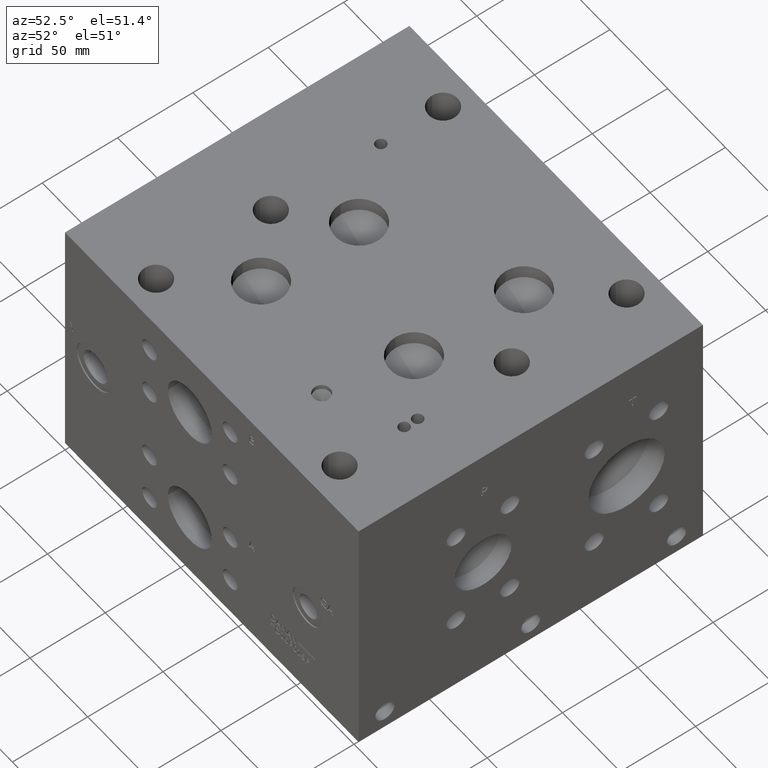
[diagram: clean part render]
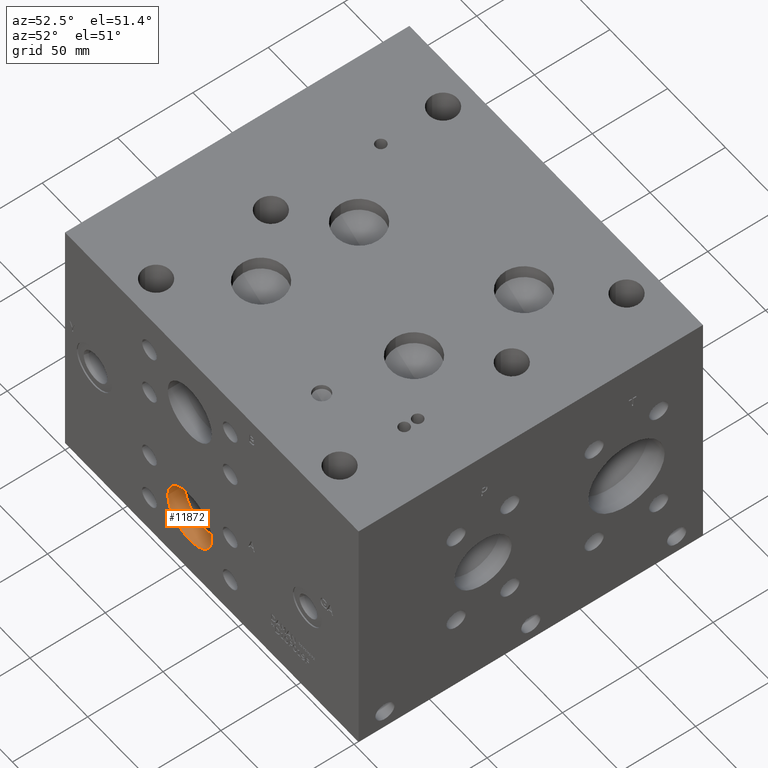
[diagram: same view with one face highlighted and labeled with its STEP entity id]
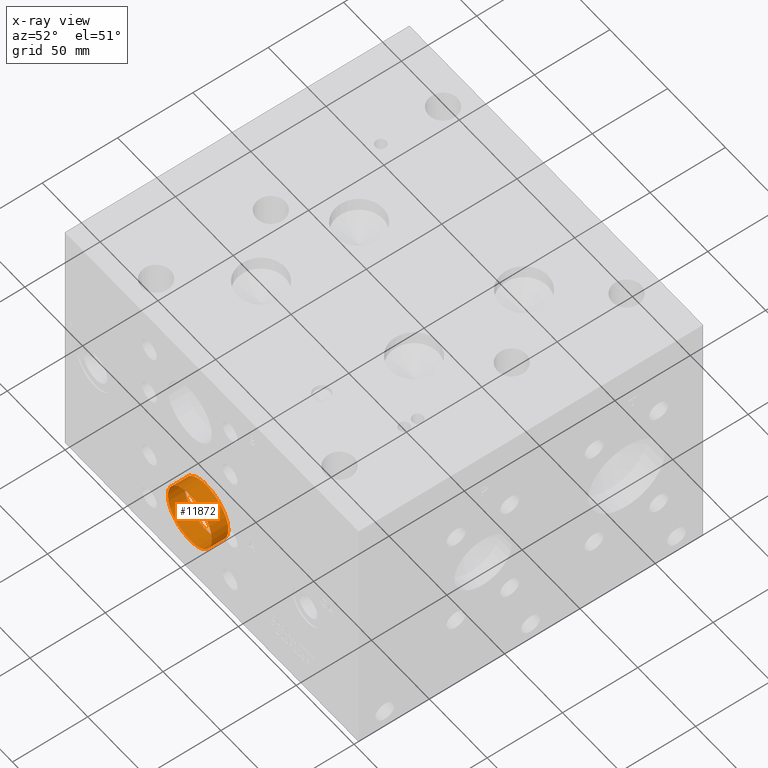
[diagram: x-ray of the same camera — body ghosted, the highlighted face saturated]
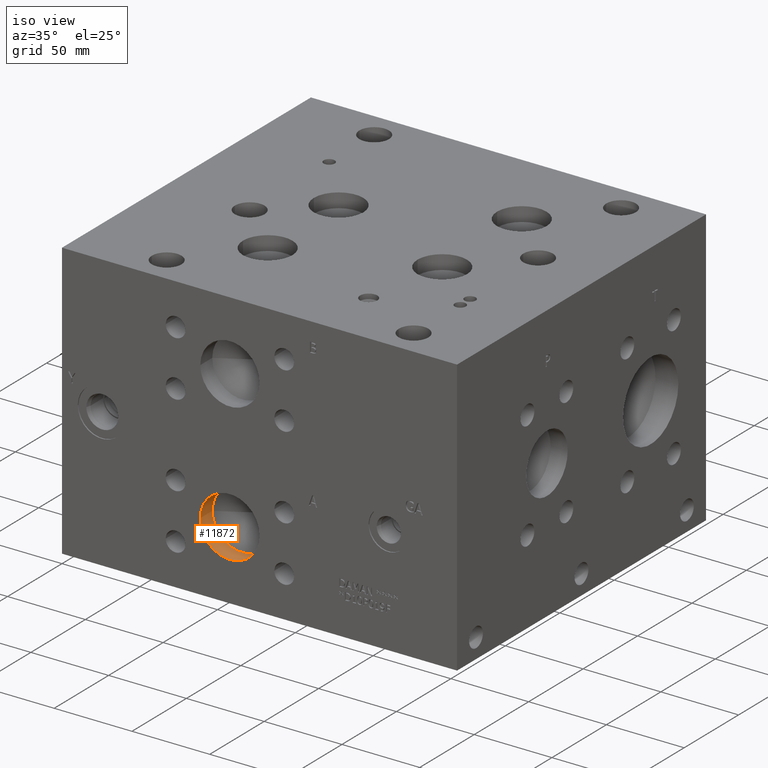
[diagram: same view with one face highlighted and labeled with its STEP entity id]
A machine part, auxiliary view. The second image highlights one B-rep face of the part: STEP entity #11872.
The next image is the same camera in x-ray: the body ghosted, the highlighted face saturated — about 0% of this face is hidden behind the body in this view.
A second angle (iso view) of the same face is appended — the face is thin or edge-on in the first view.
In plain terms, the highlighted cylindrical surface (bore or boss wall) has radius 19.05 mm, axis along (0, -1, 0).
Its self-contained STEP definition (entity closure, byte-faithful):
#36=CYLINDRICAL_SURFACE('',#12531,19.05);
#188=CIRCLE('',#12134,19.05);
#189=CIRCLE('',#12135,19.05);
#303=CIRCLE('',#12529,19.05);
#304=CIRCLE('',#12530,19.05);
#1453=FACE_OUTER_BOUND('',#2163,.T.);
#2163=EDGE_LOOP('',(#9898,#9899,#9900,#9901,#9902,#9903));
#3321=LINE('',#19861,#4401);
#4401=VECTOR('',#14840,19.05);
#4940=VERTEX_POINT('',#17606);
#4941=VERTEX_POINT('',#17607);
#5434=VERTEX_POINT('',#19854);
#5435=VERTEX_POINT('',#19855);
#6231=EDGE_CURVE('',#4940,#4941,#188,.T.);
#6232=EDGE_CURVE('',#4941,#4940,#189,.T.);
#7007=EDGE_CURVE('',#5434,#5435,#303,.T.);
#7009=EDGE_CURVE('',#5435,#5434,#304,.T.);
#7010=EDGE_CURVE('',#4941,#5435,#3321,.T.);
#9898=ORIENTED_EDGE('',*,*,#6231,.F.);
#9899=ORIENTED_EDGE('',*,*,#6232,.F.);
#9900=ORIENTED_EDGE('',*,*,#7010,.T.);
#9901=ORIENTED_EDGE('',*,*,#7007,.F.);
#9902=ORIENTED_EDGE('',*,*,#7009,.F.);
#9903=ORIENTED_EDGE('',*,*,#7010,.F.);
#11872=ADVANCED_FACE('',(#1453),#36,.F.);
#12134=AXIS2_PLACEMENT_3D('',#17608,#13476,#13477);
#12135=AXIS2_PLACEMENT_3D('',#17609,#13478,#13479);
#12529=AXIS2_PLACEMENT_3D('',#19856,#14833,#14834);
#12530=AXIS2_PLACEMENT_3D('',#19859,#14836,#14837);
#12531=AXIS2_PLACEMENT_3D('',#19860,#14838,#14839);
#13476=DIRECTION('center_axis',(0.,1.,0.));
#13477=DIRECTION('ref_axis',(1.,0.,0.));
#13478=DIRECTION('center_axis',(0.,1.,0.));
#13479=DIRECTION('ref_axis',(1.,0.,0.));
#14833=DIRECTION('center_axis',(0.,-1.,0.));
#14834=DIRECTION('ref_axis',(1.,0.,0.));
#14836=DIRECTION('center_axis',(0.,-1.,0.));
#14837=DIRECTION('ref_axis',(1.,0.,0.));
#14838=DIRECTION('center_axis',(0.,-1.,0.));
#14839=DIRECTION('ref_axis',(1.,0.,0.));
#14840=DIRECTION('',(0.,1.,0.));
#17606=CARTESIAN_POINT('',(127.,0.,44.45));
#17607=CARTESIAN_POINT('',(88.9,0.,44.45));
#17608=CARTESIAN_POINT('Origin',(107.95,0.,44.45));
#17609=CARTESIAN_POINT('Origin',(107.95,0.,44.45));
#19854=CARTESIAN_POINT('',(127.,10.99852,44.45));
#19855=CARTESIAN_POINT('',(88.9,10.99852,44.45));
#19856=CARTESIAN_POINT('Origin',(107.95,10.99852,44.45));
#19859=CARTESIAN_POINT('Origin',(107.95,10.99852,44.45));
#19860=CARTESIAN_POINT('Origin',(107.95,5.49926,44.45));
#19861=CARTESIAN_POINT('',(88.9,5.49926,44.45));